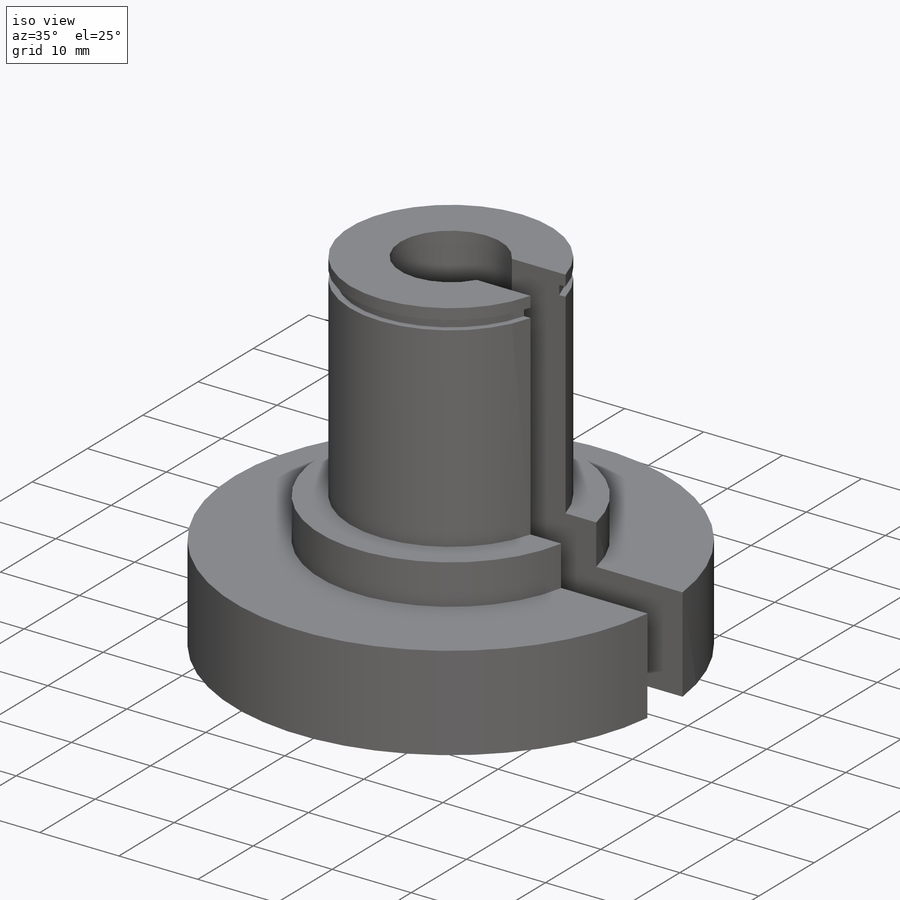
[diagram: iso view]
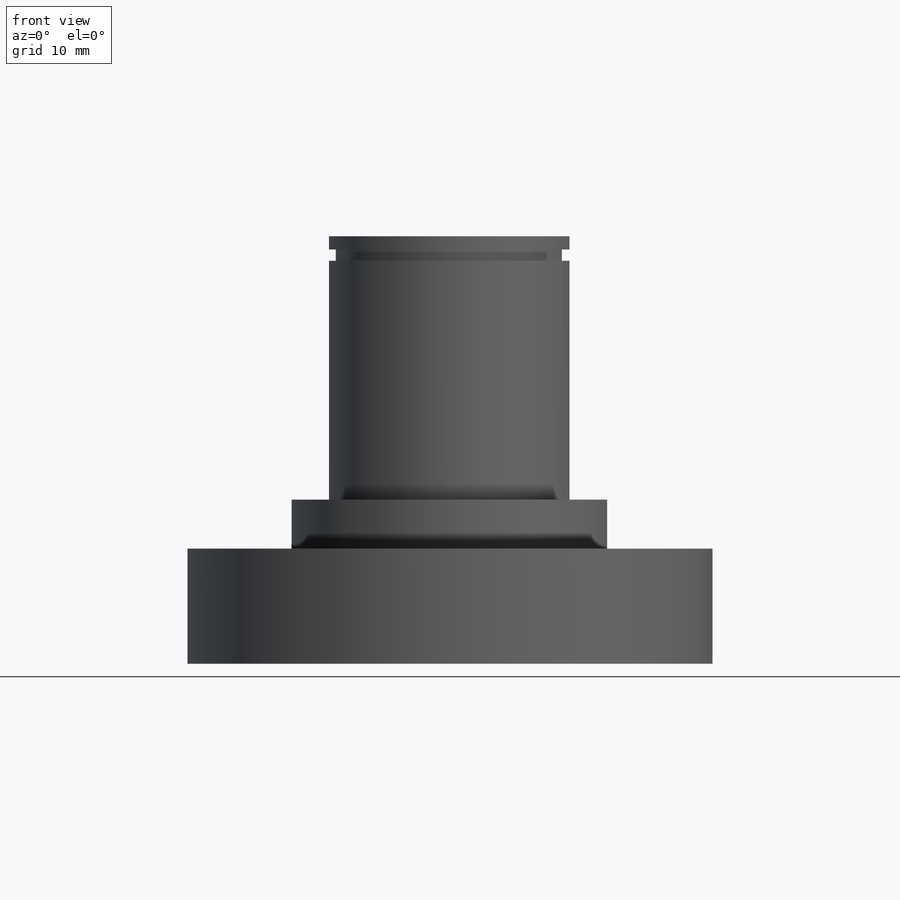
[diagram: front view]
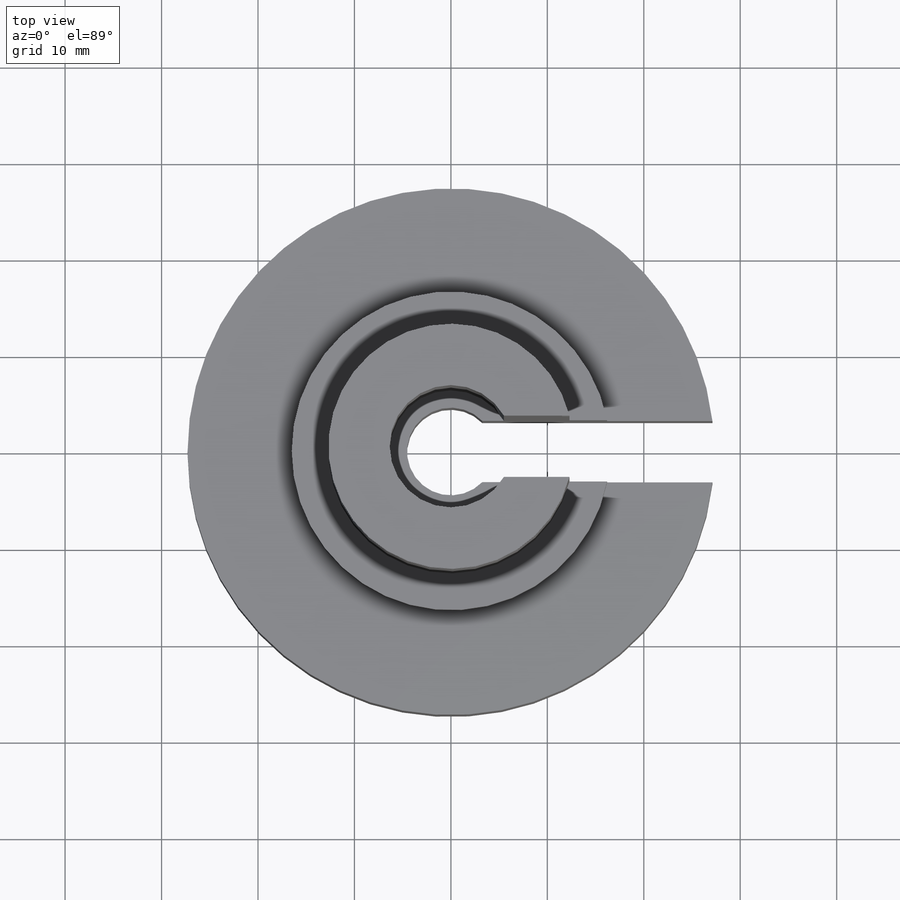
[diagram: top view]
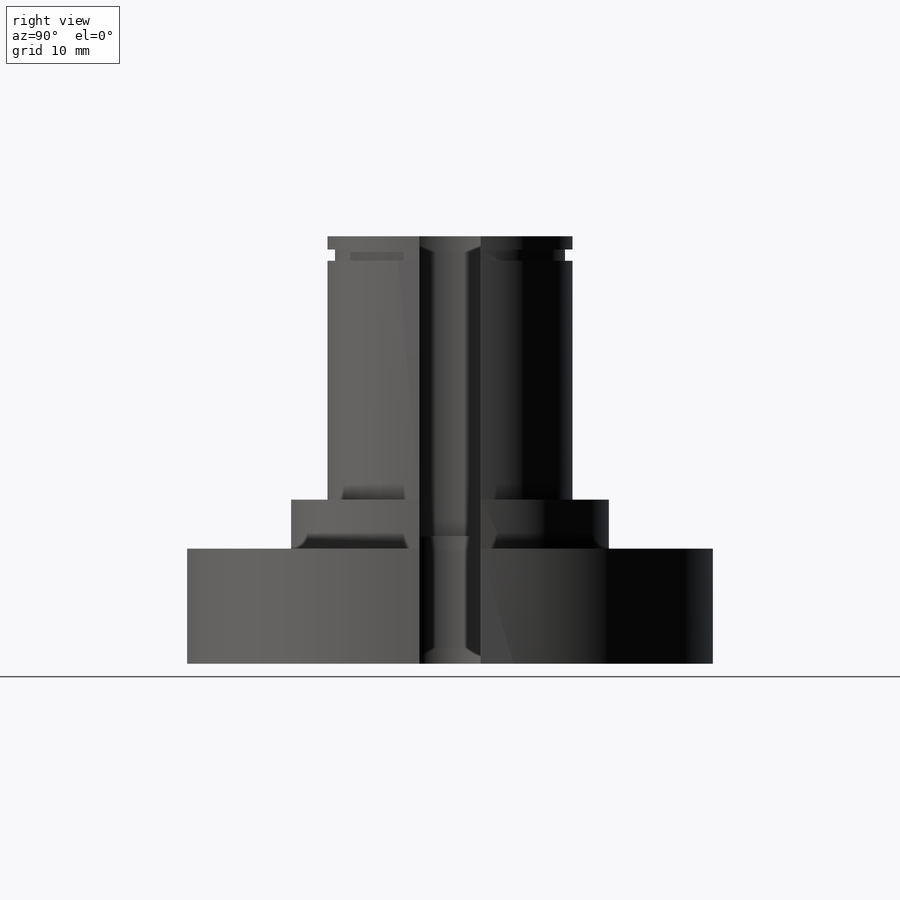
[diagram: right view]
SOLIDWORKS PART (.sldprt)
format: sldprt  version: not decoded by parser v0  size: 225,792 bytes
history: native  units: mm
features: sketch x9, cut_extrude x7, plane x4, extrude x2, material x1 (+11 scaffold rows collapsed)
feature tree (34):
  scaffold x11  (default folders/planes/origin — collapsed)
  material  "6061-T6 (SS)"
  sketch  "Sketch1"  dims[D1=54.61mm D2=9.0932mm]
  extrude  "Boss-Extrude1"  Depth=57.658mm
  sketch  "Sketch2"  dims[D1=12.7mm]
  cut_extrude  "Cut-Extrude1"  Depth=44.45mm
  sketch  "Sketch3"  dims[D1=25.4mm]
  cut_extrude  "Cut-Extrude2"  Depth=44.45mm
  plane  "Plane6"  Offset=31.115mm
  plane  "Plane1"  Offset=11.1125mm
  sketch  "Sketch10"  dims[D1=6.35mm D2=3.175mm]
  cut_extrude  "Cut-Extrude7"  Depth=6.35mm
  plane  "Plane4"  Offset=28.575mm
  sketch  "Sketch13"  dims[D1=0.0mm]
  cut_extrude  "Cut-Extrude9"  Depth=1.1684mm
  plane  "Plane5"  Offset=11.1125mm
  sketch  "Sketch16"
  cut_extrude  "Cut-Extrude11"  [1 undecoded]
  sketch  "Sketch18"  dims[D1=0.0mm D2=3.81mm]
  extrude  "Boss-Extrude4"  Depth=3.81mm
  sketch  "Sketch19"  dims[D1=0.0mm]
  cut_extrude  "Cut-Extrude12"  Depth=1.27mm
  cut_extrude  "Cut-Extrude13"  [1 undecoded]
  sketch  "Sketch10<2>"
decode coverage: 14 of 18 modeling features carry decoded parameters
note: 2 parameter values undecoded
note: suppression state not decoded; provenance and decode notes live in map.json
